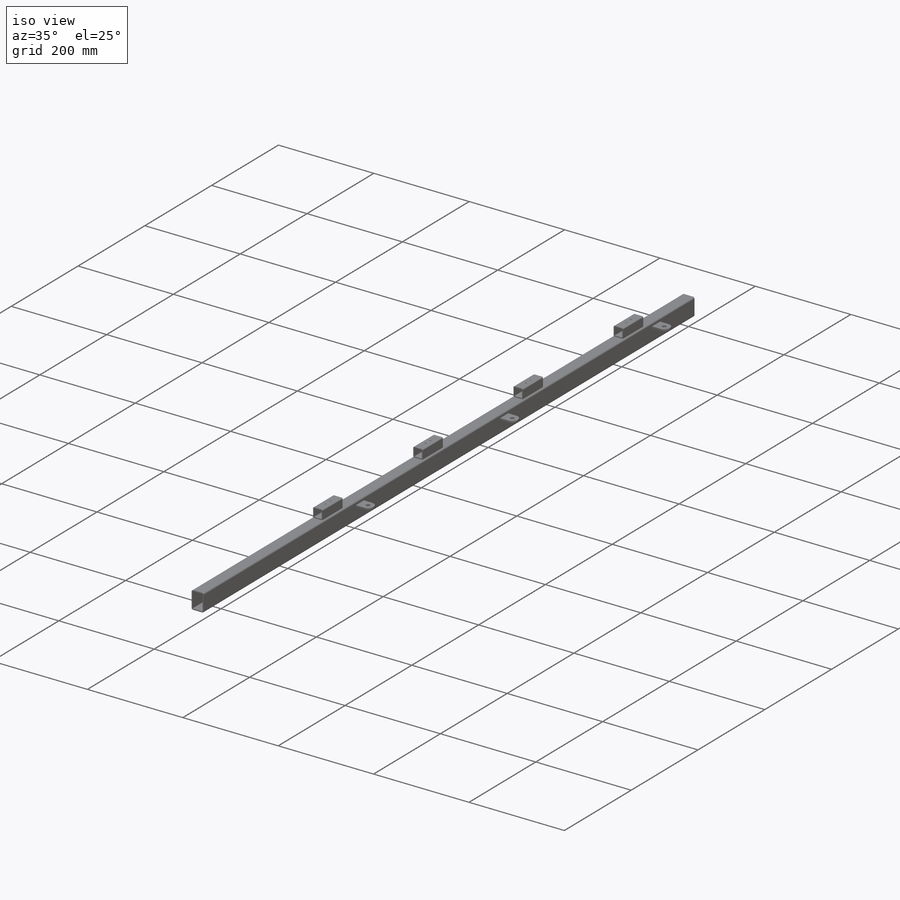
[diagram: iso view]
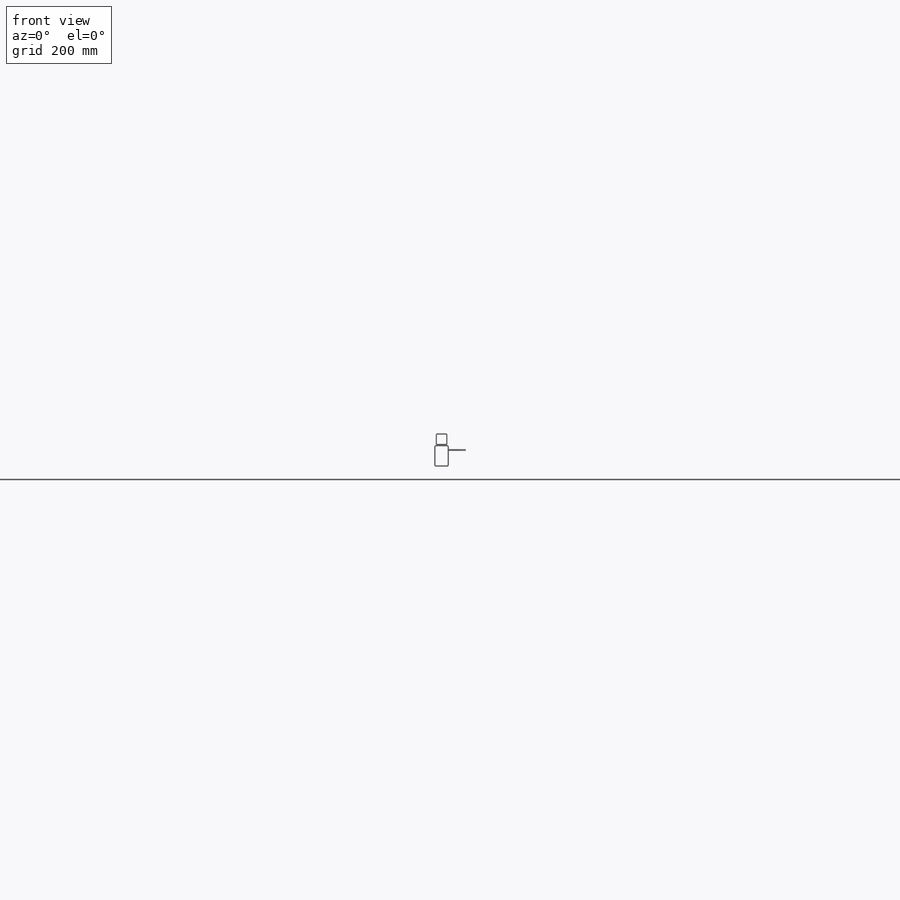
[diagram: front view]
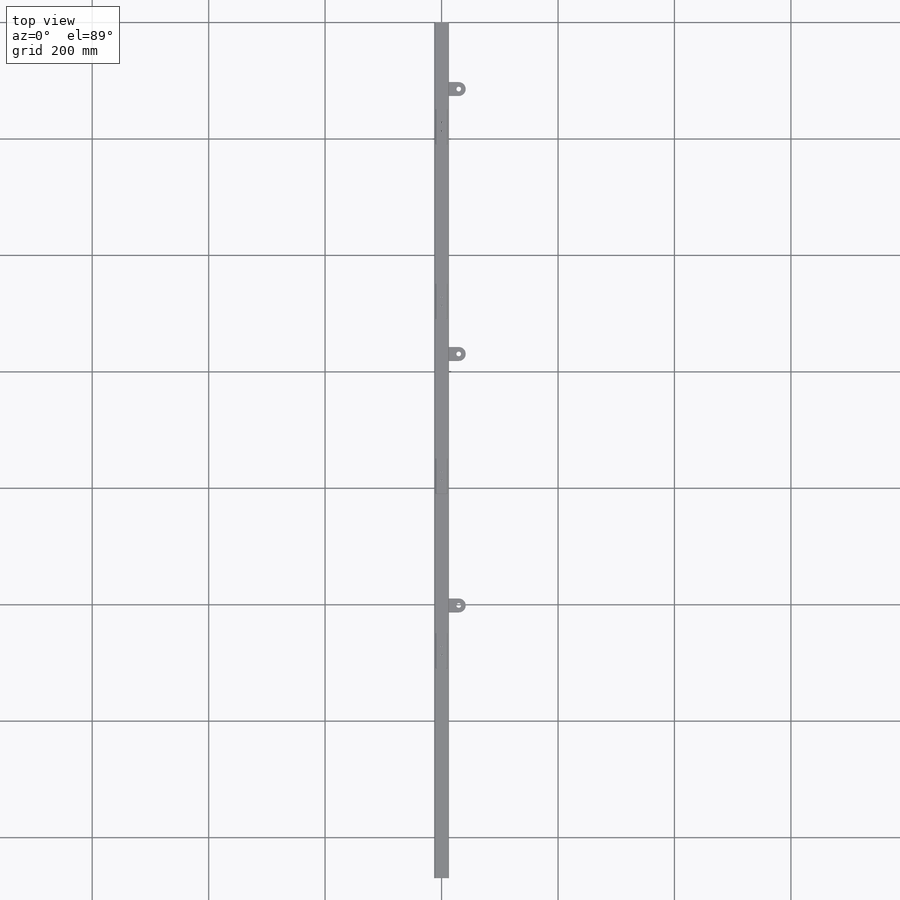
[diagram: top view]
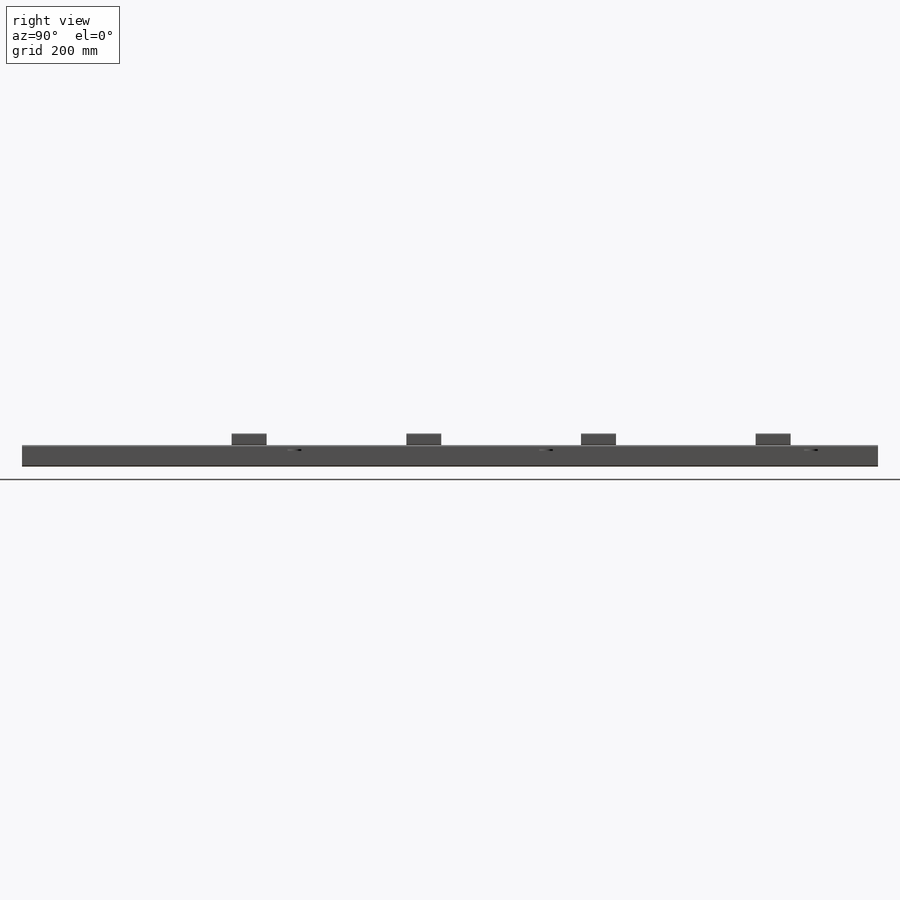
[diagram: right view]
SOLIDWORKS PART (.sldprt)
format: sldprt  version: not decoded by parser v0  size: 365,568 bytes
history: native  units: mm
features: sketch x5, plane x3, material x1, extrude x1, hole x1, pattern_linear x1 (+13 scaffold rows collapsed)
feature tree (25):
  scaffold x13  (default folders/planes/origin — collapsed)
  material  "Alloy Steel"
  sketch  "Sketch1"  dims[c1.D3=3.0mm c1.D1=37.0mm c1.D2=25.0mm c2.D1=1470.0mm c2.D5=2.0mm c2.D6=1.0mm c2.D7=5.0mm]
  plane  "Plane1"  Offset=10mm
  sketch  "Sketch2"  dims[c1.D1=8.0mm c1.D2=12.0mm c1.D5=8.0mm c1.D6=12.0mm c1.D9=8.0mm c1.D10=12.0mm c1.D3=17.0mm c1.D4=115.0mm c1.D7=15.0mm c1.D8=570.0mm c1.D11=17.0mm c1.D12=1002.0mm c2.D7=887.0mm]
  extrude  "Boss-Extrude1"  Depth=3mm
  plane  "Plane2"  Offset=150mm
  sketch  "Sketch3"  dims[c1.D2=2.0mm c1.D1=20.0mm c2.D1=60.0mm c2.D5=2.0mm c2.D6=1.0mm c2.D7=5.0mm]
  plane  "Plane3"
  hole  "M3 Clearance Hole1"  Diameter=3.2mm Depth=57mm
  sketch  "Sketch5"  dims[D1=14.9mm]
  sketch  "Sketch6"  dims[hole-wizard template sketch: 60 standard entries collapsed; hole parameters kept: c18.Thru Hole Depth=57.0mm]
  pattern_linear  "LPattern1"  Count1=4 Count2=1 Spacing1=300mm Spacing2=1mm
decode coverage: 8 of 8 modeling features carry decoded parameters
note: ~ marks probable driven/reference dimensions
note: suppression state not decoded; provenance and decode notes live in map.json
